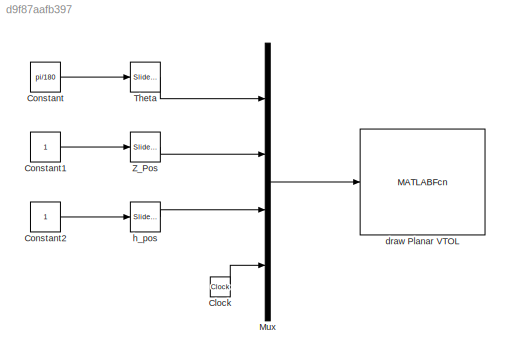
MODEL slx_d9f87aafb397
KIND model
CONFIG AbsTol = auto
CONFIG FixedStep = auto
CONFIG MaxStep = auto
CONFIG MinStep = auto
CONFIG RelTol = 1e-3
CONFIG SampleTimeConstraint = Unconstrained
CONFIG Solver = ode45
CONFIG SolverMode = Auto
CONFIG SolverName = ode45
CONFIG StartTime = 0.0
CONFIG StopTime = inf
BLOCK [Clock] Clock
BLOCK [Constant] Constant
  Value = pi/180
BLOCK [Constant] Constant1
BLOCK [Constant] Constant2
BLOCK [Mux] Mux
  DisplayOption = bar
  Ports = [4, 1]
BLOCK [Reference] Theta  REF=simulink/Math
Operations/Slider
Gain
  Ports = [1, 1]
  SourceBlock = simulink/Math\nOperations/Slider\nGain
  SourceType = Slider Gain
  gain = -16.7972
  high = 45
  low = -45
BLOCK [Reference] Z_Pos  REF=simulink/Math
Operations/Slider
Gain
  Ports = [1, 1]
  SourceBlock = simulink/Math\nOperations/Slider\nGain
  SourceType = Slider Gain
  gain = 1.6936
  high = 3.5
  low = -3.5
BLOCK [MATLABFcn] draw Planar VTOL
  MATLABFcn = drawPlanarQuad(u)
  OutputDimensions = 0
  Ports = [1]
BLOCK [Reference] h_pos  REF=simulink/Math
Operations/Slider
Gain
  Ports = [1, 1]
  SourceBlock = simulink/Math\nOperations/Slider\nGain
  SourceType = Slider Gain
  gain = 8.1106
  high = 10
  low = 0
LINE Clock:1 -> Mux:4
LINE Constant1:1 -> Z_Pos:1
LINE Constant2:1 -> h_pos:1
LINE Constant:1 -> Theta:1
LINE Mux:1 -> draw Planar VTOL:1
LINE Theta:1 -> Mux:1
LINE Z_Pos:1 -> Mux:2
LINE h_pos:1 -> Mux:3
